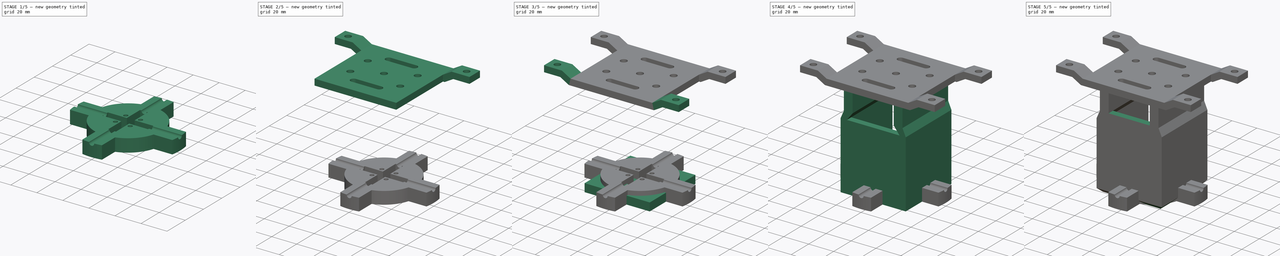
[diagram: build sequence overview — one tinted view per stage of 5, left to right]
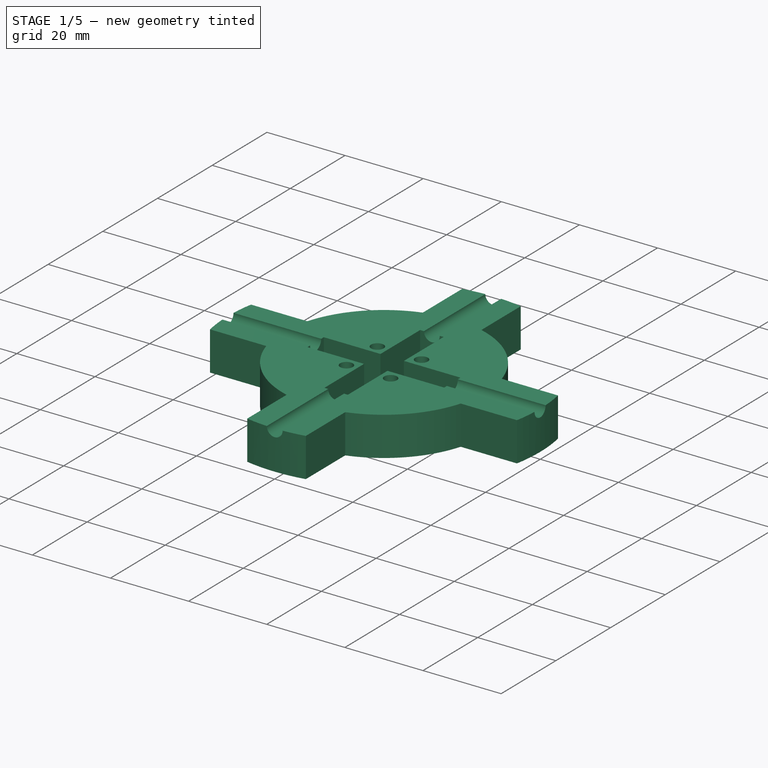
[diagram: stage 1 of 5 — iso view after this stage's code; geometry added in this stage tinted green]
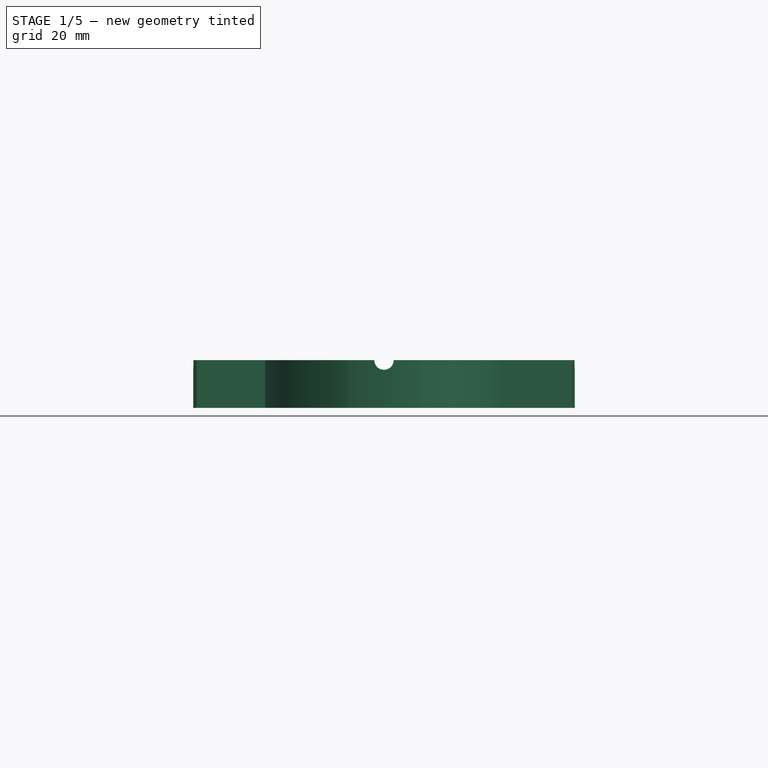
[diagram: stage 1 of 5 — front view after this stage's code; geometry added in this stage tinted green]
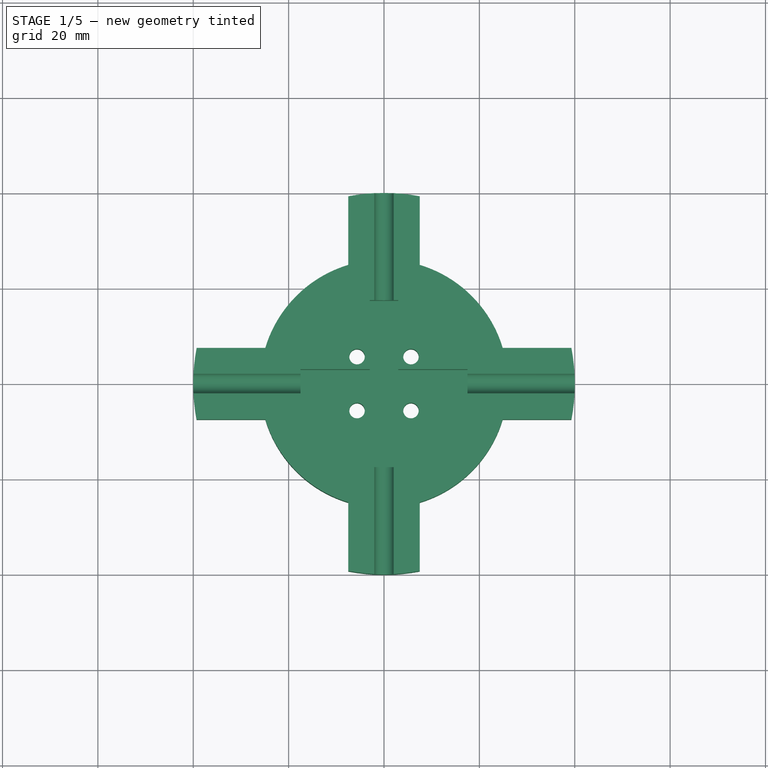
[diagram: stage 1 of 5 — top view after this stage's code; geometry added in this stage tinted green]
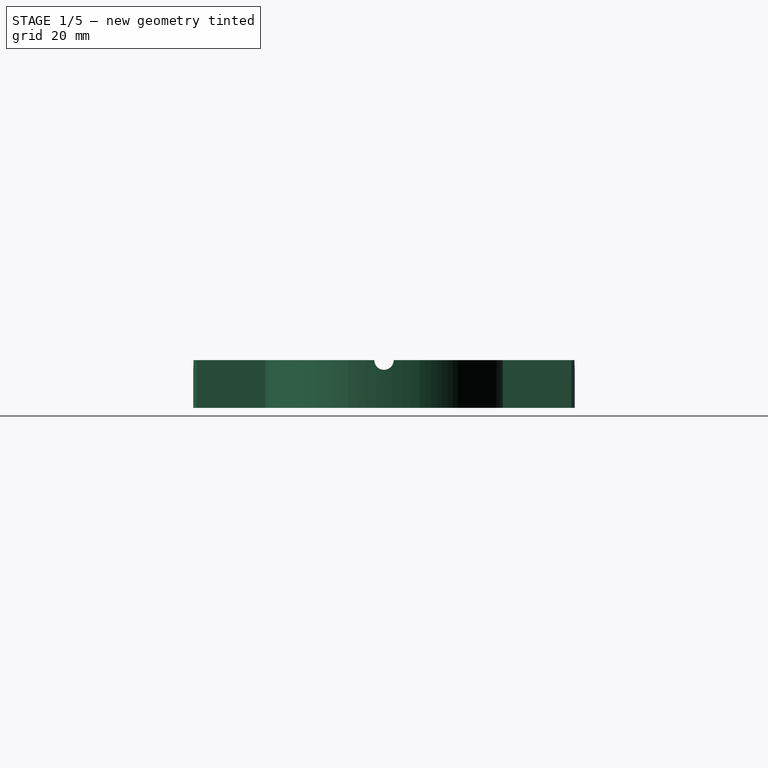
[diagram: stage 1 of 5 — right view after this stage's code; geometry added in this stage tinted green]
FCSTD DOCUMENT  (FreeCAD 1.0R39109 (Git))
Label: MotorMount
License: All rights reserved
LicenseURL: https://en.wikipedia.org/wiki/All_rights_reserved
objects: Sketcher::SketchObject×16, Part::Feature×12, PartDesign::Pad×9, PartDesign::Pocket×5, PartDesign::Body×3, PartDesign::Chamfer×2, PartDesign::Hole×2, PartDesign::Plane×2, App::Part×1, PartDesign::SubShapeBinder×1
note: 104 computed .brp shape members not serialized (recipe doc carries the construction recipe); baked Part::Feature solids carry a one-line shape summary decoded from their .brp

FEATURE [PartDesign::Body] Body001  label="ceilingMount"
  AllowCompound = false
  Group = -> [Binder,Sketch007,Pad005,Sketch008,Pad006,Sketch009,Hole,Sketch010,Pad007,Sketch011,Hole001]
  Origin = -> Origin002
  Tip = -> Hole001
FEATURE [Sketcher::SketchObject] Sketch012
  ArcFitTolerance = 1e-06
  AttachmentSupport = -> [XY_Plane003]
  FullyConstrained = true
  MakeInternals = false
  MapMode = 5
  sketch-geometry (24):
    g0: LineSegment StartX=24.8948 StartY=7.5 StartZ=0 EndX=39.2906 EndY=7.5 EndZ=0
    g1: LineSegment StartX=39.2906 StartY=-7.5 StartZ=0 EndX=24.8948 EndY=-7.5 EndZ=0
    g2: LineSegment StartX=7.5 StartY=24.8948 StartZ=0 EndX=7.5 EndY=39.2906 EndZ=0
    g3: LineSegment StartX=-7.5 StartY=39.2906 StartZ=0 EndX=-7.5 EndY=24.8948 EndZ=0
    g4: LineSegment StartX=-24.8948 StartY=7.5 StartZ=0 EndX=-39.2906 EndY=7.5 EndZ=0
    g5: LineSegment StartX=-39.2906 StartY=-7.5 StartZ=0 EndX=-24.8948 EndY=-7.5 EndZ=0
    g6: LineSegment StartX=-7.5 StartY=-24.8948 StartZ=0 EndX=-7.5 EndY=-39.2906 EndZ=0
    g7: LineSegment StartX=7.5 StartY=-39.2906 StartZ=0 EndX=7.5 EndY=-24.8948 EndZ=0
    g8: ArcOfCircle CenterX=0 CenterY=0 CenterZ=0 NormalX=0 NormalY=0 NormalZ=1 AngleXU=0 Radius=26 StartAngle=5.00501 EndAngle=5.99057
    g9: ArcOfCircle CenterX=0 CenterY=0 CenterZ=0 NormalX=0 NormalY=0 NormalZ=1 AngleXU=0 Radius=26 StartAngle=0.29262 EndAngle=1.27818
    g10: ArcOfCircle CenterX=0 CenterY=0 CenterZ=0 NormalX=0 NormalY=0 NormalZ=1 AngleXU=0 Radius=26 StartAngle=1.86342 EndAngle=2.84897
    g11: ArcOfCircle CenterX=0 CenterY=0 CenterZ=0 NormalX=0 NormalY=0 NormalZ=1 AngleXU=0 Radius=26 StartAngle=3.43421 EndAngle=4.41977
    g12: Circle CenterX=-5.65685 CenterY=5.65685 CenterZ=0 NormalX=0 NormalY=0 NormalZ=1 AngleXU=0 Radius=1.625
    g13: Circle CenterX=5.65685 CenterY=5.65685 CenterZ=0 NormalX=0 NormalY=0 NormalZ=1 AngleXU=0 Radius=1.625
    g14: Circle CenterX=5.65685 CenterY=-5.65685 CenterZ=0 NormalX=0 NormalY=0 NormalZ=1 AngleXU=0 Radius=1.625
    g15: Circle CenterX=-5.65685 CenterY=-5.65685 CenterZ=0 NormalX=0 NormalY=0 NormalZ=1 AngleXU=0 Radius=1.625
    g16: LineSegment [constr] StartX=-5.65685 StartY=-5.65685 StartZ=0 EndX=5.65685 EndY=5.65685 EndZ=0
    g17: LineSegment [constr] StartX=5.65685 StartY=-5.65685 StartZ=0 EndX=-5.65685 EndY=5.65685 EndZ=0
    g18: LineSegment [constr] StartX=-5.65685 StartY=-5.65685 StartZ=0 EndX=5.65685 EndY=-5.65685 EndZ=0
    g19: LineSegment [constr] StartX=-5.65685 StartY=-5.65685 StartZ=0 EndX=-5.65685 EndY=5.65685 EndZ=0
    g20: ArcOfCircle CenterX=0 CenterY=0 CenterZ=0 NormalX=0 NormalY=0 NormalZ=1 AngleXU=0 Radius=40 StartAngle=1.38218 EndAngle=1.75941
    g21: ArcOfCircle CenterX=0 CenterY=0 CenterZ=0 NormalX=0 NormalY=0 NormalZ=1 AngleXU=0 Radius=40 StartAngle=6.09457 EndAngle=6.4718
    g22: ArcOfCircle CenterX=0 CenterY=0 CenterZ=0 NormalX=0 NormalY=0 NormalZ=1 AngleXU=0 Radius=40 StartAngle=4.52377 EndAngle=4.90101
    g23: ArcOfCircle CenterX=0 CenterY=0 CenterZ=0 NormalX=0 NormalY=0 NormalZ=1 AngleXU=0 Radius=40 StartAngle=2.95298 EndAngle=3.33021
  constraints (66):
    c: Horizontal(g0)
    c: Horizontal(g1)
    c: Vertical(g3)
    c: Horizontal(g4)
    c: Horizontal(g5)
    c: Vertical(g6)
    c: Vertical(g7)
    c: Coincident(g8,g-1)
    c: Coincident(g8,g7)
    c: Coincident(g8,g1)
    c: Coincident(g9,g8)
    c: Coincident(g9,g0)
    c: Coincident(g9,g2)
    c: Coincident(g10,g8)
    c: Coincident(g10,g3)
    c: Coincident(g10,g4)
    c: Coincident(g11,g8)
    c: Coincident(g11,g6)
    c: Coincident(g11,g5)
    c: Equal(g8,g11)
    c: Equal(g11,g10)
    c: Equal(g10,g9)
    c: Vertical(g2)
    c: Horizontal(g0,g4)
    c: Horizontal(g3,g2)
    c: Horizontal(g5,g1)
    c: Horizontal(g7,g6)
    c: Vertical(g6,g3)
    c: Vertical(g5,g4)
    c: Equal(g3,g5)
    c: Equal(g5,g6)
    c: Equal(g0,g7)
    c: Radius(g9) = 26
    c: Equal(g15,g12)
    c: Equal(g12,g13)
    c: Equal(g13,g14)
    c: Symmetric(g12,g14,g8)
    c: Symmetric(g13,g15,g8)
    c: Coincident(g16,g15)
    c: Coincident(g16,g13)
    c: Coincident(g17,g14)
    c: Coincident(g17,g12)
    c: Equal(g17,g16)
    c: Horizontal(g14,g15)
    c: Coincident(g18,g15)
    c: Coincident(g18,g14)
    c: Coincident(g19,g15)
    c: Coincident(g19,g12)
    c: Equal(g19,g18)
    c: Distance(g17,g17) = 16
    c: Coincident(g20,g8)
    c: Coincident(g20,g3)
    c: Coincident(g20,g2)
    c: Coincident(g21,g8)
    c: Coincident(g21,g0)
    c: Coincident(g21,g1)
    c: Coincident(g22,g8)
    c: Coincident(g22,g7)
    c: Coincident(g22,g6)
    c: Coincident(g23,g8)
    c: Coincident(g23,g5)
    c: Coincident(g23,g4)
    c: Radius(g23) = 40
    c: Equal(g21,g22)
    c: DistanceY(g1,g0) = 15
    c: Diameter(g15) = 3.25
FEATURE [PartDesign::Pad] Pad008
  Direction = (0,0,1)
  Length = 10
  Length2 = 10
  Profile = -> Sketch012
  ReferenceAxis = -> Sketch012 [N_Axis]
  Refine = true
  Suppressed = false
  Type = 0
FEATURE [PartDesign::Plane] DatumPlane
  AttachmentOffset = pos=(0,0,1) rot=(0,0,1;0rad)
  AttachmentSupport = -> [Pad008]
  Length = 62.6491
  MapMode = 45
  Placement = pos=(2.4e-15,40.7632,5) rot=(0.57735,0.57735,0.57735;4.18879rad)
  ResizeMode = 0
  Width = 92.6491
FEATURE [Sketcher::SketchObject] Sketch013
  ArcFitTolerance = 1e-06
  AttachmentSupport = -> [DatumPlane]
  ExternalGeometry = -> [Pad008]
  FullyConstrained = true
  MakeInternals = false
  MapMode = 5
  Placement = pos=(2.4e-15,40.7632,5) rot=(0.57735,0.57735,0.57735;4.18879rad)
  sketch-geometry (2):
    g0: LineSegment StartX=5 StartY=-2.025 StartZ=0 EndX=5 EndY=2.025 EndZ=0
    g1: ArcOfCircle CenterX=5 CenterY=3.0191e-12 CenterZ=0 NormalX=0 NormalY=0 NormalZ=1 AngleXU=0 Radius=2.025 StartAngle=1.5708 EndAngle=4.71239
  constraints (6):
    c: Symmetric(g0,g0,g-1)
    c: Vertical(g0,g-3)
    c: DistanceY(g0,g0) = 4.05
    c: Coincident(g1,g0)
    c: Coincident(g1,g0)
    c: Vertical(g1,g0)
FEATURE [PartDesign::Pocket] Pocket002
  BaseFeature = -> Pad008
  Direction = (0,-1,0)
  Length = 0
  Length2 = 5
  Profile = -> Sketch013
  ReferenceAxis = -> Sketch013 [N_Axis]
  Refine = true
  Suppressed = false
  Type = 3
  UpToFace = -> Pad008 [Face7]
FEATURE [PartDesign::Plane] DatumPlane001
  AttachmentOffset = pos=(0,0,-1) rot=(0,0,1;0rad)
  AttachmentSupport = -> [Pocket002]
  Length = 62.6491
  MapMode = 45
  Placement = pos=(-40.7632,4.8e-15,5) rot=(0.707107,0,0.707107;3.14159rad)
  ResizeMode = 0
  Width = 92.6491
FEATURE [Sketcher::SketchObject] Sketch014
  ArcFitTolerance = 1e-06
  AttachmentSupport = -> [DatumPlane001]
  ExternalGeometry = -> [Pocket002]
  FullyConstrained = true
  MakeInternals = false
  MapMode = 5
  Placement = pos=(-40.7632,4.8e-15,5) rot=(0.707107,0,0.707107;3.14159rad)
  sketch-geometry (2):
    g0: ArcOfCircle CenterX=5 CenterY=0 CenterZ=0 NormalX=0 NormalY=0 NormalZ=1 AngleXU=0 Radius=2.025 StartAngle=1.5708 EndAngle=4.71239
    g1: LineSegment StartX=5 StartY=-2.025 StartZ=0 EndX=5 EndY=2.025 EndZ=0
  constraints (7):
    c: PointOnObject(g0,g-1)
    c: Coincident(g1,g0)
    c: Coincident(g1,g0)
    c: Vertical(g1)
    c: Vertical(g0,g0)
    c: Vertical(g0,g-3)
    c: DistanceY(g1,g1) = 4.05
FEATURE [PartDesign::Pocket] Pocket003
  BaseFeature = -> Pocket002
  Direction = (-1,0,2e-16)
  Length = 0
  Length2 = 5
  Profile = -> Sketch014
  ReferenceAxis = -> Sketch014 [N_Axis]
  Refine = true
  Suppressed = false
  Type = 3
  UpToFace = -> Pocket002 [Face6]
FEATURE [Sketcher::SketchObject] Sketch015
  ArcFitTolerance = 1e-06
  AttachmentSupport = -> [Pocket003]
  FullyConstrained = true
  MakeInternals = false
  MapMode = 5
  Placement = pos=(0,0,10) rot=(0,0,1;0rad)
  sketch-geometry (12):
    g0: LineSegment StartX=-3 StartY=17.5 StartZ=0 EndX=-3 EndY=3 EndZ=0
    g1: LineSegment StartX=-3 StartY=3 StartZ=0 EndX=-17.5 EndY=3 EndZ=0
    g2: LineSegment StartX=-17.5 StartY=3 StartZ=0 EndX=-17.5 EndY=-3 EndZ=0
    g3: LineSegment StartX=-17.5 StartY=-3 StartZ=0 EndX=-3 EndY=-3 EndZ=0
    g4: LineSegment StartX=-3 StartY=-3 StartZ=0 EndX=-3 EndY=-17.5 EndZ=0
    g5: LineSegment StartX=-3 StartY=-17.5 StartZ=0 EndX=3 EndY=-17.5 EndZ=0
    g6: LineSegment StartX=3 StartY=-17.5 StartZ=0 EndX=3 EndY=-3 EndZ=0
    g7: LineSegment StartX=3 StartY=-3 StartZ=0 EndX=17.5 EndY=-3 EndZ=0
    g8: LineSegment StartX=17.5 StartY=-3 StartZ=0 EndX=17.5 EndY=3 EndZ=0
    g9: LineSegment StartX=17.5 StartY=3 StartZ=0 EndX=3 EndY=3 EndZ=0
    g10: LineSegment StartX=3 StartY=3 StartZ=0 EndX=3 EndY=17.5 EndZ=0
    g11: LineSegment StartX=3 StartY=17.5 StartZ=0 EndX=-3 EndY=17.5 EndZ=0
  constraints (34):
    c: Vertical(g0)
    c: Coincident(g0,g1)
    c: Horizontal(g1)
    c: Coincident(g1,g2)
    c: Coincident(g2,g3)
    c: Horizontal(g3)
    c: Coincident(g3,g4)
    c: Vertical(g4)
    c: Coincident(g4,g5)
    c: Coincident(g5,g6)
    c: Vertical(g6)
    c: Coincident(g6,g7)
    c: Horizontal(g7)
    c: Coincident(g7,g8)
    c: Coincident(g8,g9)
    c: Horizontal(g9)
    c: Coincident(g9,g10)
    c: Vertical(g10)
    c: Coincident(g10,g11)
    c: Coincident(g11,g0)
    c: Horizontal(g11)
    c: Vertical(g2)
    c: Equal(g3,g1)
    c: Equal(g1,g0)
    c: Equal(g0,g10)
    c: Equal(g10,g9)
    c: Equal(g9,g7)
    c: Equal(g7,g6)
    c: Equal(g6,g4)
    c: Symmetric(g5,g4,g-2)
    c: Symmetric(g7,g8,g-1)
    c: Equal(g11,g8)
    c: DistanceY(g5,g10) = 35
    c: DistanceY(g2,g2) = 6
FEATURE [PartDesign::Pocket] Pocket004
  BaseFeature = -> Pocket003
  Direction = (0,0,-1)
  Length = 9
  Length2 = 5
  Profile = -> Sketch015
  ReferenceAxis = -> Sketch015 [N_Axis]
  Refine = true
  Suppressed = false
  Type = 0
FEATURE [PartDesign::Body] Body002  label="hangerHolder"
  AllowCompound = false
  Group = -> [Sketch012,Pad008,DatumPlane,Sketch013,Pocket002,DatumPlane001,Sketch014,Pocket003,Sketch015,Pocket004]
  Origin = -> Origin003
  Placement = pos=(0,0,-43) rot=(0,0,1;0rad)
  Tip = -> Pocket004
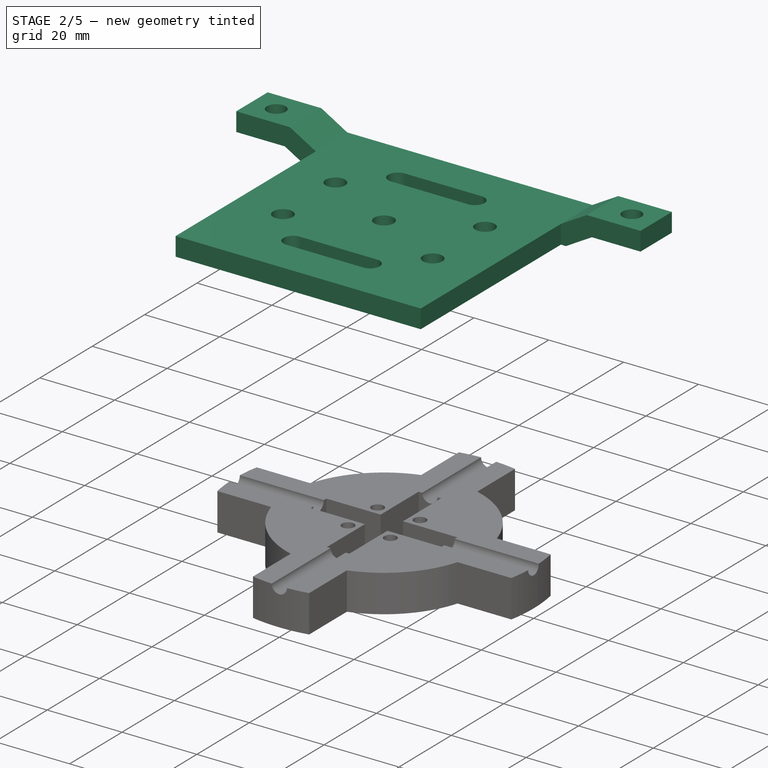
[diagram: stage 2 of 5 — iso view after this stage's code; geometry added in this stage tinted green]
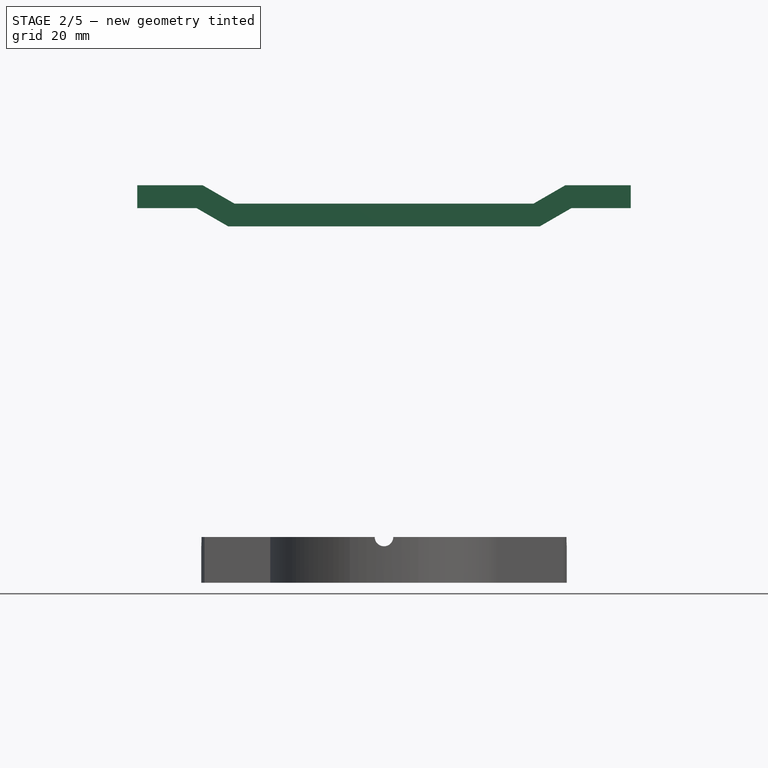
[diagram: stage 2 of 5 — front view after this stage's code; geometry added in this stage tinted green]
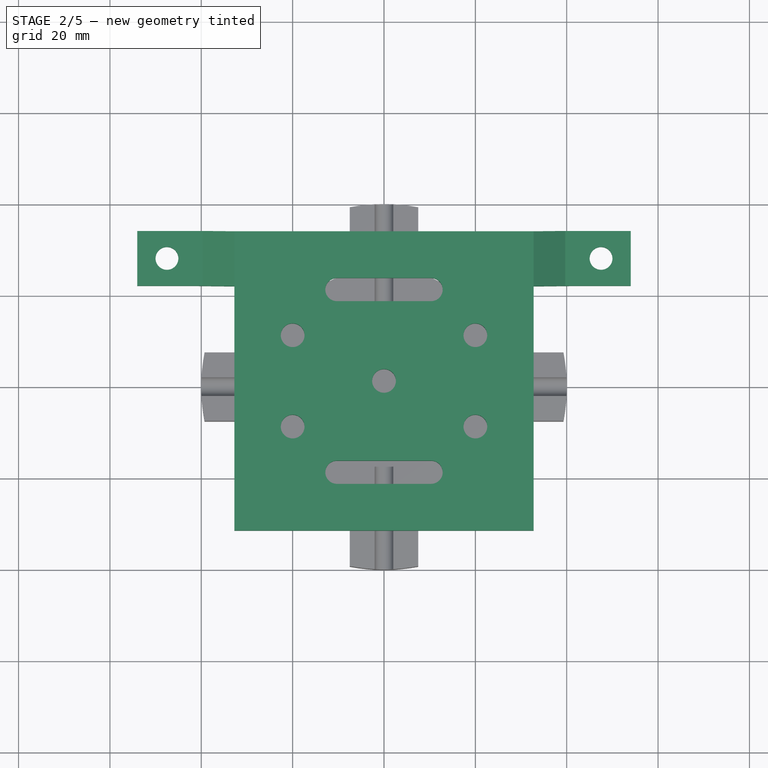
[diagram: stage 2 of 5 — top view after this stage's code; geometry added in this stage tinted green]
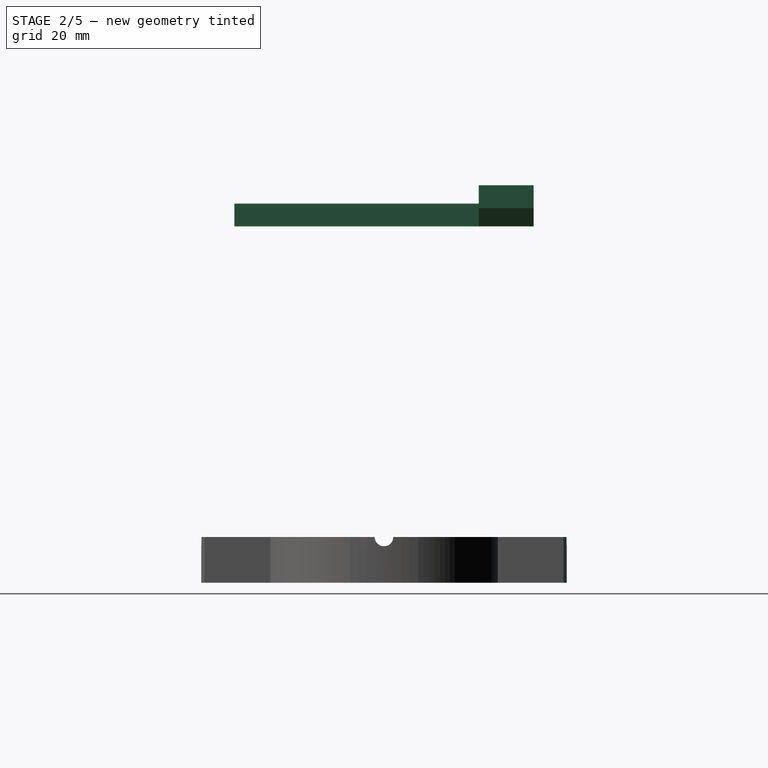
[diagram: stage 2 of 5 — right view after this stage's code; geometry added in this stage tinted green]
FEATURE [PartDesign::Body] Body  label="stepperMount"
  AllowCompound = false
  Group = -> [Sketch,Pad,Sketch001,Pocket,Sketch002,Pad001,Chamfer,Sketch003,Pad002,Sketch004,Pocket001,Sketch005,Pad003,Sketch006,Pad004,Chamfer001]
  Origin = -> Origin
  Tip = -> Chamfer001
FEATURE [PartDesign::SubShapeBinder] Binder
  BindCopyOnChange = 0
  BindMode = 0
  ClaimChildren = false
  Context = -> Body001 [Binder.]
  Fuse = false
  MakeFace = true
  OffsetFill = false
  OffsetIntersection = false
  OffsetJoinType = 0
  OffsetOpenResult = false
  PartialLoad = false
  Refine = true
  Relative = true
  Support = -> [Part__Feature011]
  _Version = 2
FEATURE [Sketcher::SketchObject] Sketch007
  ArcFitTolerance = 1e-06
  AttachmentSupport = -> [Binder]
  ExternalGeometry = -> [Binder]
  FullyConstrained = true
  MakeInternals = false
  MapMode = 5
  Placement = pos=(0,0,78) rot=(0,0,1;0rad)
  sketch-geometry (17):
    g0: LineSegment StartX=-32.75 StartY=32.75 StartZ=0 EndX=-32.75 EndY=-32.75 EndZ=0
    g1: LineSegment StartX=-32.75 StartY=-32.75 StartZ=0 EndX=32.75 EndY=-32.75 EndZ=0
    g2: LineSegment StartX=32.75 StartY=-32.75 StartZ=0 EndX=32.75 EndY=32.75 EndZ=0
    g3: LineSegment StartX=32.75 StartY=32.75 StartZ=0 EndX=-32.75 EndY=32.75 EndZ=0
    g4: Circle CenterX=-20 CenterY=-10 CenterZ=0 NormalX=0 NormalY=0 NormalZ=1 AngleXU=0 Radius=2.6
    g5: Circle CenterX=20 CenterY=-10 CenterZ=0 NormalX=0 NormalY=0 NormalZ=1 AngleXU=0 Radius=2.6
    g6: Circle CenterX=-20 CenterY=10 CenterZ=0 NormalX=0 NormalY=0 NormalZ=1 AngleXU=0 Radius=2.6
    g7: Circle CenterX=20 CenterY=10 CenterZ=0 NormalX=0 NormalY=0 NormalZ=1 AngleXU=0 Radius=2.6
    g8: Circle CenterX=0 CenterY=0 CenterZ=0 NormalX=0 NormalY=0 NormalZ=1 AngleXU=0 Radius=2.6
    g9: ArcOfCircle CenterX=-10.3 CenterY=-20 CenterZ=0 NormalX=0 NormalY=0 NormalZ=1 AngleXU=0 Radius=2.55 StartAngle=1.5708 EndAngle=4.71239
    g10: ArcOfCircle CenterX=10.3 CenterY=-20 CenterZ=0 NormalX=0 NormalY=0 NormalZ=1 AngleXU=0 Radius=2.55 StartAngle=4.71239 EndAngle=7.85398
    g11: LineSegment StartX=-10.3 StartY=-17.45 StartZ=0 EndX=10.3 EndY=-17.45 EndZ=0
    g12: LineSegment StartX=-10.3 StartY=-22.55 StartZ=0 EndX=10.3 EndY=-22.55 EndZ=0
    g13: ArcOfCircle CenterX=10.3 CenterY=20 CenterZ=0 NormalX=0 NormalY=0 NormalZ=1 AngleXU=0 Radius=2.55 StartAngle=4.71239 EndAngle=7.85398
    g14: ArcOfCircle CenterX=-10.3 CenterY=20 CenterZ=0 NormalX=0 NormalY=0 NormalZ=1 AngleXU=0 Radius=2.55 StartAngle=1.5708 EndAngle=4.71239
    g15: LineSegment StartX=10.3 StartY=17.45 StartZ=0 EndX=-10.3 EndY=17.45 EndZ=0
    g16: LineSegment StartX=10.3 StartY=22.55 StartZ=0 EndX=-10.3 EndY=22.55 EndZ=0
  constraints (40):
    c: Coincident(g0,g1)
    c: Coincident(g1,g2)
    c: Coincident(g2,g3)
    c: Coincident(g3,g0)
    c: Vertical(g0)
    c: Vertical(g2)
    c: Horizontal(g1)
    c: Horizontal(g3)
    c: PointOnObject(g-5,g1)
    c: PointOnObject(g-3,g2)
    c: PointOnObject(g-6,g3)
    c: PointOnObject(g-4,g0)
    c: Symmetric(g4,g5,g-2)
    c: Symmetric(g6,g7,g-2)
    c: Equal(g7,g6)
    c: Equal(g6,g4)
    c: Equal(g4,g5)
    c: Diameter(g6) = 5.2
    c: DistanceX(g6,g7) = 40
    c: Symmetric(g7,g5,g-1)
    c: DistanceY(g5,g7) = 20
    c: Coincident(g8,g-1)
    c: Equal(g8,g6)
    c: Tangent(g9,g11) = 1.5708
    c: Tangent(g9,g12) = -1.5708
    c: Tangent(g10,g11) = 1.5708
    c: Tangent(g10,g12) = -1.5708
    c: Equal(g9,g10)
    c: Symmetric(g9,g10,g-2)
    c: Tangent(g13,g15) = 1.5708
    c: Tangent(g13,g16) = -1.5708
    c: Tangent(g14,g15) = 1.5708
    c: Tangent(g14,g16) = -1.5708
    c: Equal(g13,g14)
    c: Symmetric(g14,g13,g-2)
    c: Symmetric(g9,g14,g-1)
    c: DistanceY(g9,g14) = 40
    c: Radius(g13) = 2.55
    c: Equal(g13,g10)
    c: Distance(g14,g13) = 15.5
FEATURE [PartDesign::Pad] Pad005
  Direction = (0,0,1)
  Length = 5
  Length2 = 10
  Profile = -> Sketch007
  ReferenceAxis = -> Sketch007 [N_Axis]
  Refine = true
  Suppressed = false
  Type = 0
FEATURE [Sketcher::SketchObject] Sketch008
  ArcFitTolerance = 1e-06
  AttachmentSupport = -> [Pad005]
  ExternalGeometry = -> [Pad005]
  FullyConstrained = true
  MakeInternals = false
  MapMode = 5
  Placement = pos=(0,32.75,0) rot=(0,0.707107,0.707107;3.14159rad)
  sketch-geometry (14):
    g0: LineSegment StartX=-39.6782 StartY=87 StartZ=0 EndX=-54.0179 EndY=87 EndZ=0
    g1: LineSegment StartX=-54.0179 StartY=87 StartZ=0 EndX=-54.0179 EndY=82 EndZ=0
    g2: LineSegment StartX=-54.0179 StartY=82 StartZ=0 EndX=-41.0179 EndY=82 EndZ=0
    g3: LineSegment StartX=-39.6782 StartY=87 StartZ=0 EndX=-32.75 EndY=83 EndZ=0
    g4: LineSegment StartX=-41.0179 StartY=82 StartZ=0 EndX=-34.0897 EndY=78 EndZ=0
    g5: LineSegment StartX=-34.0897 StartY=78 StartZ=0 EndX=-32.75 EndY=78 EndZ=0
    g6: LineSegment StartX=39.6782 StartY=87 StartZ=0 EndX=54.0179 EndY=87 EndZ=0
    g7: LineSegment StartX=54.0179 StartY=87 StartZ=0 EndX=54.0179 EndY=82 EndZ=0
    g8: LineSegment StartX=54.0179 StartY=82 StartZ=0 EndX=41.0179 EndY=82 EndZ=0
    g9: LineSegment StartX=39.6782 StartY=87 StartZ=0 EndX=32.75 EndY=83 EndZ=0
    g10: LineSegment StartX=41.0179 StartY=82 StartZ=0 EndX=34.0897 EndY=78 EndZ=0
    g11: LineSegment StartX=34.0897 StartY=78 StartZ=0 EndX=32.75 EndY=78 EndZ=0
    g12: LineSegment StartX=-32.75 StartY=83 StartZ=0 EndX=-32.75 EndY=78 EndZ=0
    g13: LineSegment StartX=32.75 StartY=78 StartZ=0 EndX=32.75 EndY=83 EndZ=0
  constraints (37):
    c: Coincident(g0,g1)
    c: Coincident(g1,g2)
    c: Horizontal(g2)
    c: Coincident(g0,g3)
    c: Horizontal(g0)
    c: Vertical(g1)
    c: Coincident(g2,g4)
    c: Coincident(g4,g5)
    c: Coincident(g5,g-4)
    c: Horizontal(g5)
    c: Parallel(g3,g4)
    c: Distance(g3,g4) = 5
    c: Coincident(g3,g-3)
    c: Distance(g2,g0) = 5
    c: DistanceX(g2,g2) = 13
    c: DistanceY(g3,g0) = 4
    c: Angle(g5,g4) = 2.61799
    c: Coincident(g6,g7)
    c: Coincident(g7,g8)
    c: Horizontal(g8)
    c: Coincident(g6,g9)
    c: Horizontal(g6)
    c: Vertical(g7)
    c: Coincident(g8,g10)
    c: Coincident(g10,g11)
    c: Horizontal(g11)
    c: Parallel(g9,g10)
    c: Distance(g9,g10) = 5
    c: Distance(g8,g6) = 5
    c: Angle(g11,g10) = -2.61799
    c: Symmetric(g3,g9,g-2)
    c: Symmetric(g11,g5,g-2)
    c: Symmetric(g0,g6,g-2)
    c: Coincident(g12,g3)
    c: Coincident(g12,g5)
    c: Coincident(g13,g11)
    c: Coincident(g13,g9)
FEATURE [PartDesign::Pad] Pad006
  BaseFeature = -> Pad005
  Direction = (0,1,-2e-16)
  Length = 12
  Length2 = 10
  Profile = -> Sketch008
  ReferenceAxis = -> Sketch008 [N_Axis]
  Refine = true
  Reversed = true
  Suppressed = false
  Type = 0
FEATURE [Sketcher::SketchObject] Sketch009
  ArcFitTolerance = 1e-06
  AttachmentSupport = -> [Pad006]
  ExternalGeometry = -> [Pad006]
  FullyConstrained = true
  MakeInternals = false
  MapMode = 5
  Placement = pos=(0,1.8e-14,82) rot=(1,0,0;3.14159rad)
  sketch-geometry (2):
    g0: Circle CenterX=-47.5179 CenterY=-26.75 CenterZ=0 NormalX=0 NormalY=0 NormalZ=1 AngleXU=0 Radius=2.25
    g1: Circle CenterX=47.5179 CenterY=-26.75 CenterZ=0 NormalX=0 NormalY=0 NormalZ=1 AngleXU=0 Radius=2.25
  constraints (4):
    c: Symmetric(g-3,g-4,g0)
    c: Symmetric(g-5,g-6,g1)
    c: Equal(g1,g0)
    c: Diameter(g0) = 4.5
FEATURE [PartDesign::Hole] Hole
  BaseFeature = -> Pad006
  CustomThreadClearance = 0
  Depth = 25
  DepthType = 0
  Diameter = 5
  DrillForDepth = false
  DrillPoint = 1
  DrillPointAngle = 118
  HoleCutCountersinkAngle = 80
  HoleCutCustomValues = false
  HoleCutDepth = 0
  HoleCutDiameter = 7
  HoleCutType = 2
  ModelThread = false
  Profile = -> Sketch009
  Refine = true
  Suppressed = false
  Tapered = false
  TaperedAngle = 90
  ThreadClass = 0
  ThreadDepth = 25
  ThreadDepthType = 0
  ThreadDirection = 0
  ThreadFit = 0
  ThreadSize = 12
  ThreadType = 1
  Threaded = false
  UseCustomThreadClearance = false
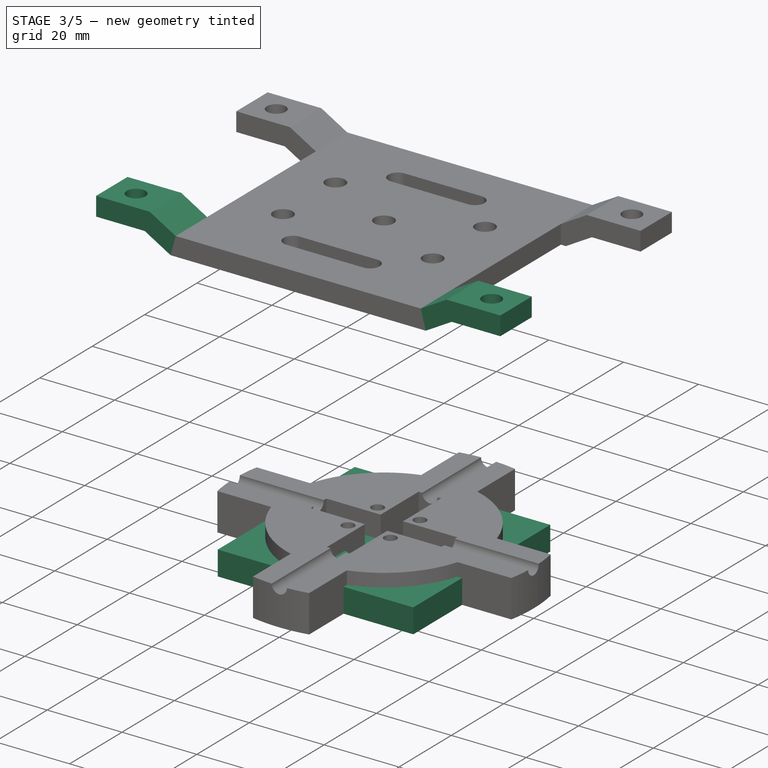
[diagram: stage 3 of 5 — iso view after this stage's code; geometry added in this stage tinted green]
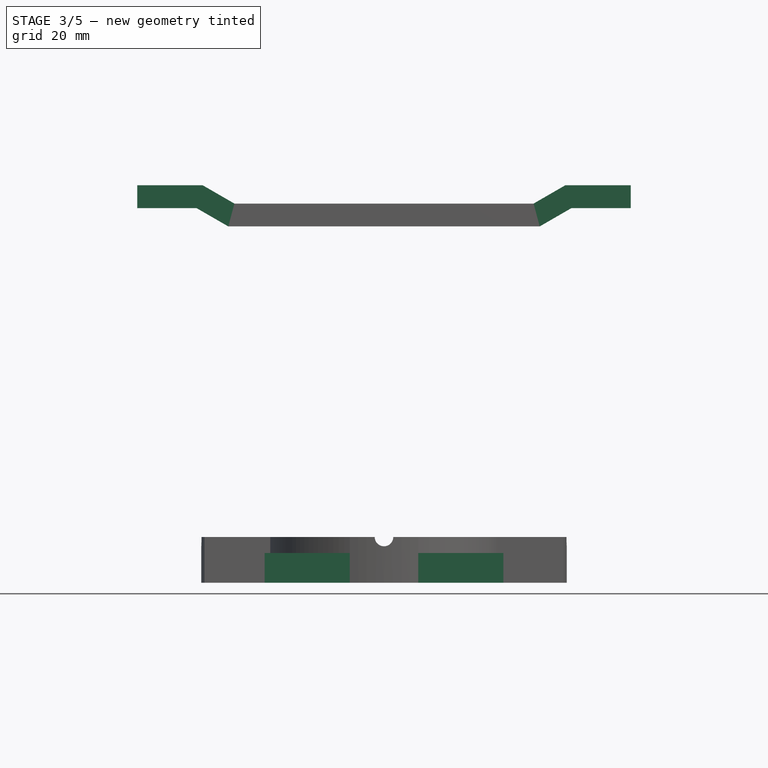
[diagram: stage 3 of 5 — front view after this stage's code; geometry added in this stage tinted green]
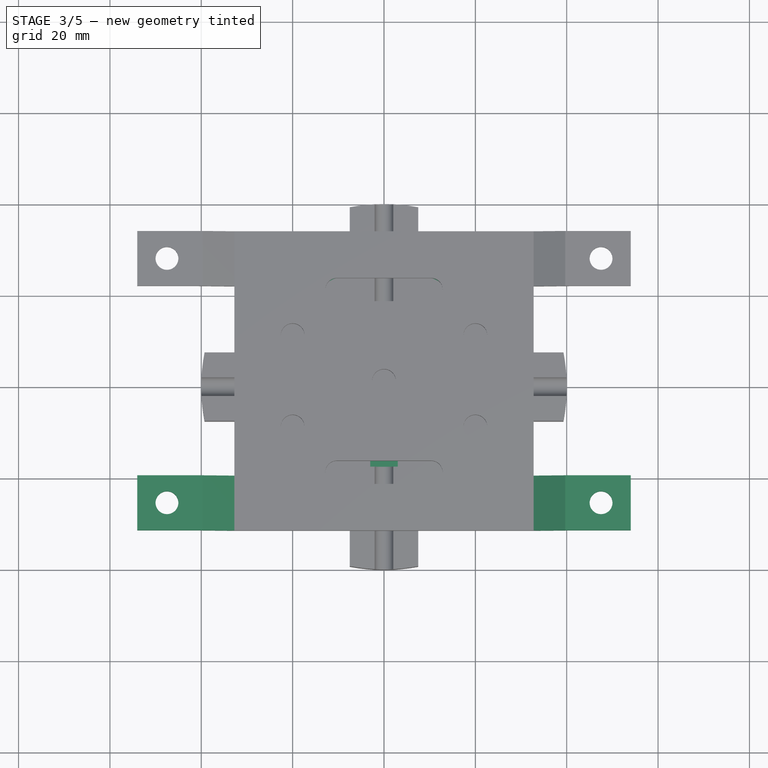
[diagram: stage 3 of 5 — top view after this stage's code; geometry added in this stage tinted green]
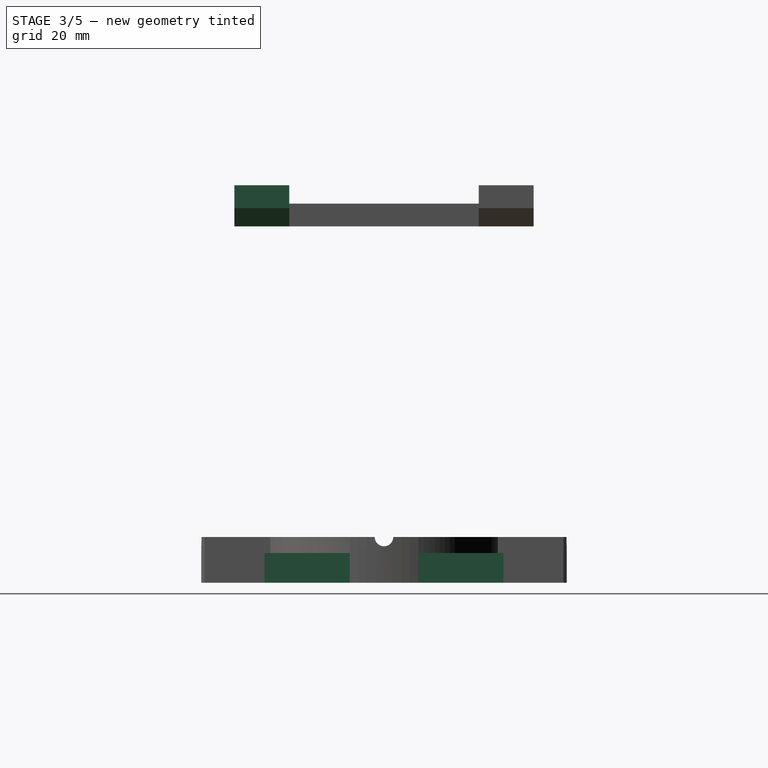
[diagram: stage 3 of 5 — right view after this stage's code; geometry added in this stage tinted green]
FEATURE [Sketcher::SketchObject] Sketch
  ArcFitTolerance = 1e-06
  AttachmentSupport = -> [XY_Plane]
  FullyConstrained = true
  MakeInternals = false
  MapMode = 5
  sketch-geometry (15):
    g0: ArcOfCircle CenterX=0 CenterY=0 CenterZ=0 NormalX=0 NormalY=0 NormalZ=1 AngleXU=0 Radius=3 StartAngle=3.14159 EndAngle=6.28319
    g1: GeomPoint [constr] X=0 Y=0 Z=0
    g2: Circle CenterX=-15.5 CenterY=-15.5 CenterZ=0 NormalX=0 NormalY=0 NormalZ=1 AngleXU=0 Radius=1.65
    g3: Circle CenterX=15.5 CenterY=-15.5 CenterZ=0 NormalX=0 NormalY=0 NormalZ=1 AngleXU=0 Radius=1.65
    g4: Circle CenterX=15.5 CenterY=15.5 CenterZ=0 NormalX=0 NormalY=0 NormalZ=1 AngleXU=0 Radius=1.65
    g5: Circle CenterX=-15.5 CenterY=15.5 CenterZ=0 NormalX=0 NormalY=0 NormalZ=1 AngleXU=0 Radius=1.65
    g6: LineSegment [constr] StartX=-15.5 StartY=-15.5 StartZ=0 EndX=15.5 EndY=-15.5 EndZ=0
    g7: LineSegment [constr] StartX=15.5 StartY=-15.5 StartZ=0 EndX=15.5 EndY=15.5 EndZ=0
    g8: LineSegment StartX=-26.125 StartY=26.125 StartZ=0 EndX=-26.125 EndY=-26.125 EndZ=0
    g9: LineSegment StartX=-26.125 StartY=-26.125 StartZ=0 EndX=26.125 EndY=-26.125 EndZ=0
    g10: LineSegment StartX=26.125 StartY=-26.125 StartZ=0 EndX=26.125 EndY=26.125 EndZ=0
    g11: LineSegment StartX=-26.125 StartY=26.125 StartZ=0 EndX=-3 EndY=26.125 EndZ=0
    g12: LineSegment StartX=-3 StartY=0 StartZ=0 EndX=-3 EndY=26.125 EndZ=0
    g13: LineSegment StartX=3 StartY=0 StartZ=0 EndX=3 EndY=26.125 EndZ=0
    g14: LineSegment StartX=3 StartY=26.125 StartZ=0 EndX=26.125 EndY=26.125 EndZ=0
  constraints (39):
    c: Coincident(g0,g-1)
    c: Coincident(g1,g0)
    c: Diameter(g0) = 6
    c: Equal(g3,g4)
    c: Equal(g4,g5)
    c: Equal(g5,g2)
    c: Horizontal(g3,g2)
    c: Horizontal(g4,g5)
    c: Vertical(g5,g2)
    c: Vertical(g4,g3)
    c: Symmetric(g5,g3,g0)
    c: Coincident(g6,g2)
    c: Coincident(g6,g3)
    c: Coincident(g7,g3)
    c: Coincident(g7,g4)
    c: Equal(g7,g6)
    c: DistanceY(g7,g7) = 31
    c: Diameter(g5) = 3.3
    c: Vertical(g10)
    c: Horizontal(g11)
    c: Symmetric(g9,g9,g-2)
    c: Symmetric(g8,g8,g-1)
    c: DistanceY(g9,g11) = 52.25
    c: Vertical(g12)
    c: PointOnObject(g13,g14)
    c: Vertical(g13)
    c: Coincident(g11,g12)
    c: PointOnObject(g14,g13)
    c: Coincident(g0,g13)
    c: Coincident(g0,g12)
    c: Horizontal(g0,g0)
    c: Horizontal(g0,g0)
    c: Horizontal(g14)
    c: Horizontal(g13,g11)
    c: Coincident(g8,g11)
    c: Coincident(g8,g9)
    c: Coincident(g9,g10)
    c: Coincident(g10,g14)
    c: Equal(g9,g8)
FEATURE [PartDesign::Pad] Pad
  Direction = (0,0,1)
  Length = 6.5
  Length2 = 10
  Profile = -> Sketch
  ReferenceAxis = -> Sketch [N_Axis]
  Refine = true
  Suppressed = false
  Type = 0
FEATURE [Sketcher::SketchObject] Sketch001
  ArcFitTolerance = 1e-06
  AttachmentSupport = -> [Pad]
  ExternalGeometry = -> [Pad]
  FullyConstrained = true
  MakeInternals = false
  MapMode = 5
  Placement = pos=(0,0,6.5) rot=(0,0,1;0rad)
  sketch-geometry (4):
    g0: ArcOfCircle CenterX=0 CenterY=-1.4e-15 CenterZ=0 NormalX=0 NormalY=0 NormalZ=1 AngleXU=0 Radius=11.1 StartAngle=3.14159 EndAngle=6.28319
    g1: LineSegment StartX=-11.1 StartY=-1.4e-15 StartZ=0 EndX=-11.1 EndY=26.125 EndZ=0
    g2: LineSegment StartX=11.1 StartY=-1.4e-15 StartZ=0 EndX=11.1 EndY=26.125 EndZ=0
    g3: LineSegment StartX=-11.1 StartY=26.125 StartZ=0 EndX=11.1 EndY=26.125 EndZ=0
  constraints (12):
    c: Coincident(g0,g-1)
    c: Diameter(g0) = 22.2
    c: Vertical(g1)
    c: PointOnObject(g2,g-3)
    c: Vertical(g2)
    c: Coincident(g0,g2)
    c: Coincident(g0,g1)
    c: Horizontal(g0,g0)
    c: Horizontal(g0,g0)
    c: Horizontal(g1,g2)
    c: Coincident(g3,g1)
    c: Coincident(g3,g2)
FEATURE [PartDesign::Pocket] Pocket
  BaseFeature = -> Pad
  Direction = (0,0,-1)
  Length = 2.5
  Length2 = 5
  Profile = -> Sketch001
  ReferenceAxis = -> Sketch001 [N_Axis]
  Refine = true
  Suppressed = false
  Type = 0
FEATURE [Sketcher::SketchObject] Sketch010
  ArcFitTolerance = 1e-06
  AttachmentSupport = -> [Hole]
  ExternalGeometry = -> [Hole]
  FullyConstrained = true
  MakeInternals = false
  MapMode = 5
  Placement = pos=(0,-32.75,0) rot=(1,0,0;1.5708rad)
  sketch-geometry (14):
    g0: LineSegment StartX=-32.75 StartY=83 StartZ=0 EndX=-39.6782 EndY=87 EndZ=0
    g1: LineSegment StartX=-39.6782 StartY=87 StartZ=0 EndX=-54.0179 EndY=87 EndZ=0
    g2: LineSegment StartX=-54.0179 StartY=87 StartZ=0 EndX=-54.0179 EndY=82 EndZ=0
    g3: LineSegment StartX=-54.0179 StartY=82 StartZ=0 EndX=-41.0179 EndY=82 EndZ=0
    g4: LineSegment StartX=-41.0179 StartY=82 StartZ=0 EndX=-34.0897 EndY=78 EndZ=0
    g5: LineSegment StartX=-34.0897 StartY=78 StartZ=0 EndX=-32.75 EndY=78 EndZ=0
    g6: LineSegment StartX=-32.75 StartY=78 StartZ=0 EndX=-32.75 EndY=83 EndZ=0
    g7: LineSegment StartX=32.75 StartY=78 StartZ=0 EndX=32.75 EndY=83 EndZ=0
    g8: LineSegment StartX=32.75 StartY=83 StartZ=0 EndX=39.6782 EndY=87 EndZ=0
    g9: LineSegment StartX=39.6782 StartY=87 StartZ=0 EndX=54.0179 EndY=87 EndZ=0
    g10: LineSegment StartX=54.0179 StartY=87 StartZ=0 EndX=54.0179 EndY=82 EndZ=0
    g11: LineSegment StartX=54.0179 StartY=82 StartZ=0 EndX=41.0179 EndY=82 EndZ=0
    g12: LineSegment StartX=41.0179 StartY=82 StartZ=0 EndX=34.0897 EndY=78 EndZ=0
    g13: LineSegment StartX=34.0897 StartY=78 StartZ=0 EndX=32.75 EndY=78 EndZ=0
  constraints (28):
    c: Coincident(g0,g-7)
    c: Coincident(g0,g-3)
    c: Coincident(g0,g1)
    c: Coincident(g1,g-4)
    c: Coincident(g1,g2)
    c: Coincident(g2,g-5)
    c: Coincident(g2,g3)
    c: Coincident(g3,g-6)
    c: Coincident(g3,g4)
    c: Coincident(g4,g-9)
    c: Coincident(g4,g5)
    c: Coincident(g5,g-8)
    c: Coincident(g5,g6)
    c: Coincident(g6,g0)
    c: Coincident(g7,g-11)
    c: Coincident(g7,g-10)
    c: Coincident(g7,g8)
    c: Coincident(g8,g-14)
    c: Coincident(g8,g9)
    c: Coincident(g9,g-15)
    c: Coincident(g9,g10)
    c: Coincident(g10,g-16)
    c: Coincident(g10,g11)
    c: Coincident(g11,g-13)
    c: Coincident(g11,g12)
    c: Coincident(g12,g-12)
    c: Coincident(g12,g13)
    c: Coincident(g13,g7)
FEATURE [PartDesign::Pad] Pad007
  BaseFeature = -> Hole
  Direction = (0,-1,2e-16)
  Length = 12
  Length2 = 10
  Profile = -> Sketch010
  ReferenceAxis = -> Sketch010 [N_Axis]
  Refine = true
  Reversed = true
  Suppressed = false
  Type = 0
FEATURE [Sketcher::SketchObject] Sketch011
  ArcFitTolerance = 1e-06
  AttachmentSupport = -> [Pad007]
  ExternalGeometry = -> [Pad007]
  FullyConstrained = true
  MakeInternals = false
  MapMode = 5
  Placement = pos=(-2.69e-13,1.8e-14,82) rot=(1,0,0;3.14159rad)
  sketch-geometry (2):
    g0: Circle CenterX=-47.5179 CenterY=26.75 CenterZ=0 NormalX=0 NormalY=0 NormalZ=1 AngleXU=0 Radius=2.25
    g1: Circle CenterX=47.5179 CenterY=26.75 CenterZ=0 NormalX=0 NormalY=0 NormalZ=1 AngleXU=0 Radius=2.25
  constraints (4):
    c: Symmetric(g-4,g-3,g0)
    c: Symmetric(g-5,g-6,g1)
    c: Equal(g1,g0)
    c: Diameter(g0) = 4.5
FEATURE [PartDesign::Hole] Hole001
  BaseFeature = -> Pad007
  CustomThreadClearance = 0
  Depth = 25
  DepthType = 0
  Diameter = 5
  DrillForDepth = false
  DrillPoint = 1
  DrillPointAngle = 118
  HoleCutCountersinkAngle = 80
  HoleCutCustomValues = false
  HoleCutDepth = 0
  HoleCutDiameter = 7
  HoleCutType = 2
  ModelThread = false
  Profile = -> Sketch011
  Refine = true
  Suppressed = false
  Tapered = false
  TaperedAngle = 90
  ThreadClass = 0
  ThreadDepth = 25
  ThreadDepthType = 0
  ThreadDirection = 0
  ThreadFit = 0
  ThreadSize = 12
  ThreadType = 1
  Threaded = false
  UseCustomThreadClearance = false
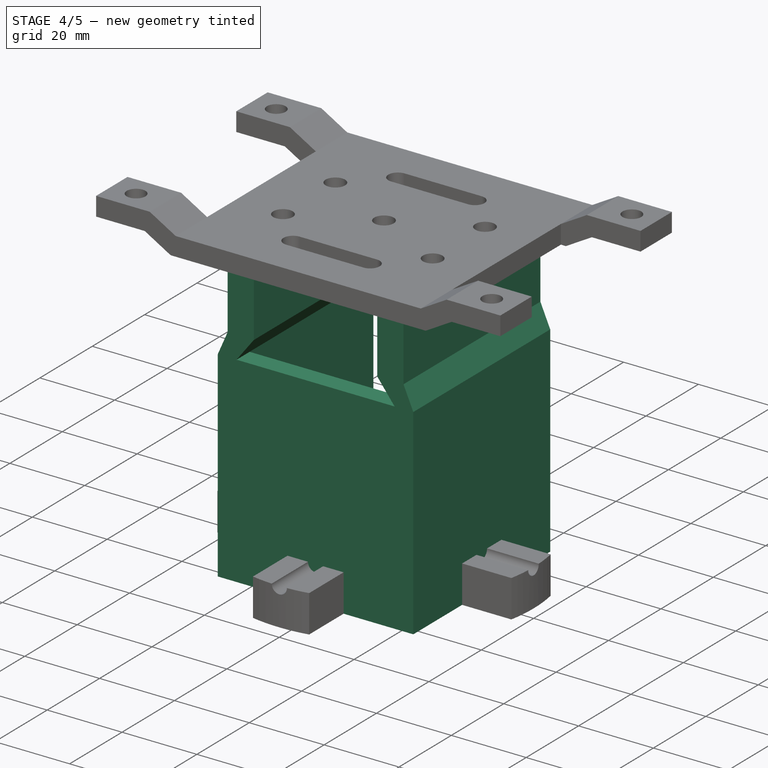
[diagram: stage 4 of 5 — iso view after this stage's code; geometry added in this stage tinted green]
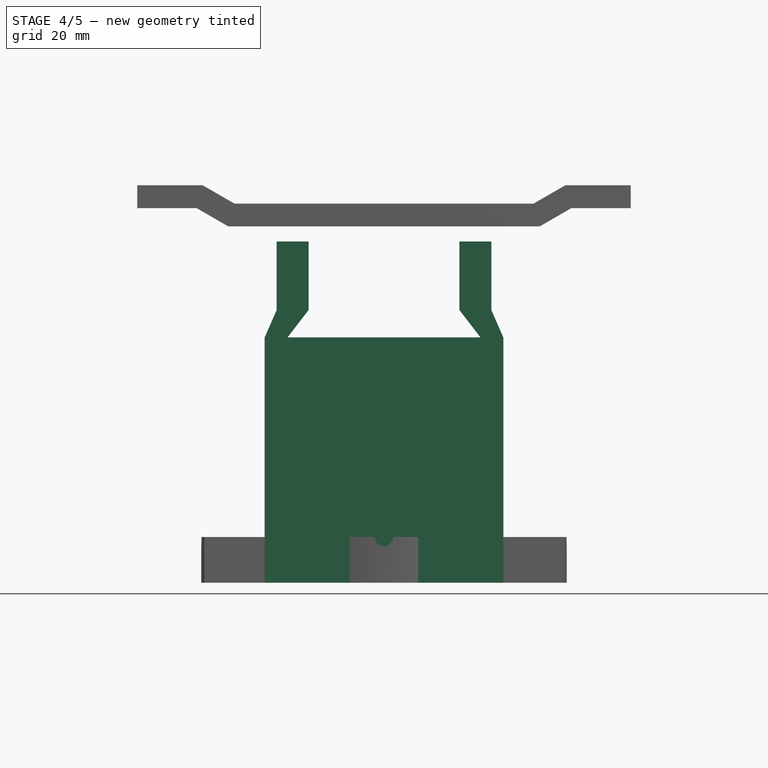
[diagram: stage 4 of 5 — front view after this stage's code; geometry added in this stage tinted green]
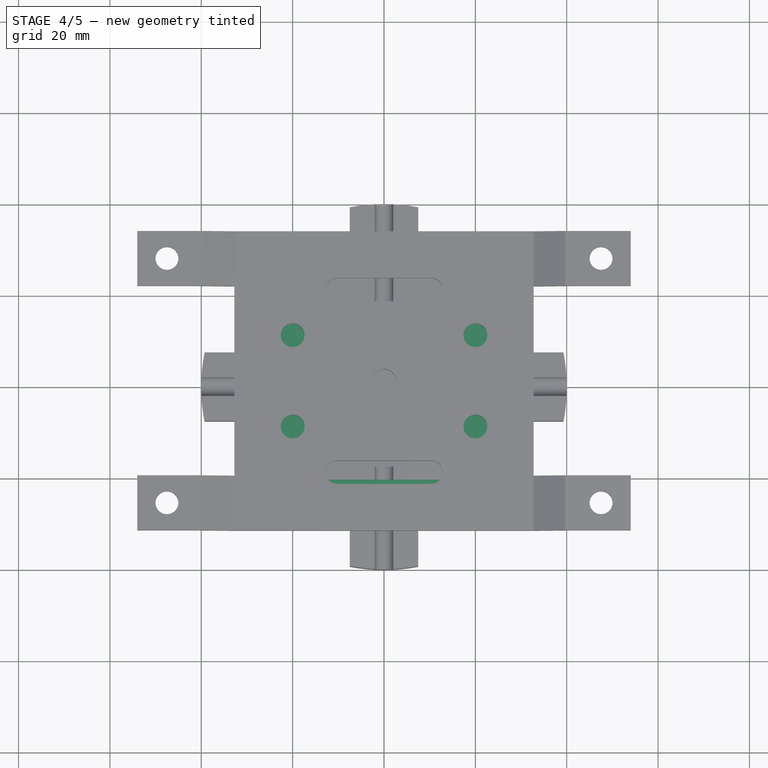
[diagram: stage 4 of 5 — top view after this stage's code; geometry added in this stage tinted green]
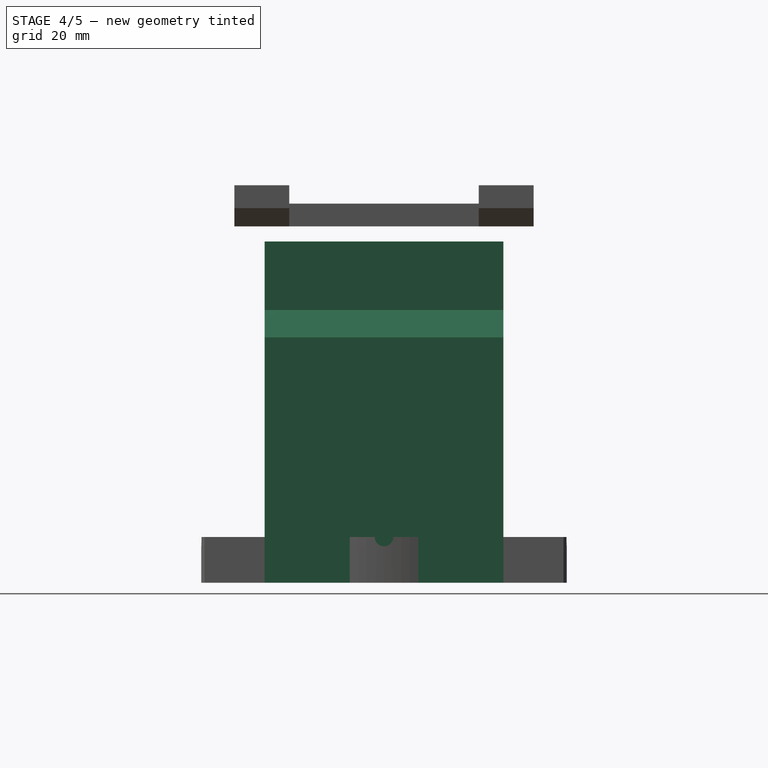
[diagram: stage 4 of 5 — right view after this stage's code; geometry added in this stage tinted green]
FEATURE [Sketcher::SketchObject] Sketch002
  ArcFitTolerance = 1e-06
  AttachmentSupport = -> [Pocket]
  ExternalGeometry = -> [Pocket]
  FullyConstrained = true
  MakeInternals = false
  MapMode = 5
  Placement = pos=(0,0,6.5) rot=(0,0,1;0rad)
  sketch-geometry (8):
    g0: LineSegment StartX=-26.125 StartY=-26.125 StartZ=0 EndX=-26.125 EndY=26.125 EndZ=0
    g1: LineSegment StartX=26.125 StartY=26.125 StartZ=0 EndX=26.125 EndY=-26.125 EndZ=0
    g2: LineSegment StartX=26.125 StartY=-26.125 StartZ=0 EndX=-26.125 EndY=-26.125 EndZ=0
    g3: LineSegment StartX=-21.125 StartY=-21.125 StartZ=0 EndX=21.125 EndY=-21.125 EndZ=0
    g4: LineSegment StartX=21.125 StartY=-21.125 StartZ=0 EndX=21.125 EndY=26.125 EndZ=0
    g5: LineSegment StartX=-21.125 StartY=26.125 StartZ=0 EndX=-21.125 EndY=-21.125 EndZ=0
    g6: LineSegment StartX=-26.125 StartY=26.125 StartZ=0 EndX=-21.125 EndY=26.125 EndZ=0
    g7: LineSegment StartX=21.125 StartY=26.125 StartZ=0 EndX=26.125 EndY=26.125 EndZ=0
  constraints (20):
    c: Coincident(g0,g-6)
    c: Coincident(g0,g2)
    c: Coincident(g2,g-4)
    c: Coincident(g5,g3)
    c: Vertical(g5)
    c: Horizontal(g3)
    c: Coincident(g0,g-3)
    c: Coincident(g1,g2)
    c: Coincident(g1,g-5)
    c: Coincident(g6,g0)
    c: Coincident(g6,g5)
    c: Coincident(g7,g4)
    c: Coincident(g7,g1)
    c: Horizontal(g7)
    c: Horizontal(g6)
    c: Vertical(g4)
    c: Coincident(g3,g4)
    c: Distance(g1,g4) = 5
    c: Equal(g6,g7)
    c: Distance(g2,g3) = 5
FEATURE [PartDesign::Pad] Pad001
  BaseFeature = -> Pocket
  Direction = (0,0,1)
  Length = 47.2
  Length2 = 10
  Profile = -> Sketch002
  ReferenceAxis = -> Sketch002 [N_Axis]
  Refine = true
  Suppressed = false
  Type = 0
FEATURE [PartDesign::Chamfer] Chamfer
  Angle = 45
  Base = -> Pad001 [Edge38,Edge44,Edge13,Edge24]
  BaseFeature = -> Pad001
  ChamferType = 0
  FlipDirection = false
  Refine = true
  Size = 1
  Size2 = 1
  SupportTransform = false
  Suppressed = false
  UseAllEdges = false
FEATURE [Sketcher::SketchObject] Sketch003
  ArcFitTolerance = 1e-06
  AttachmentSupport = -> [Chamfer]
  ExternalGeometry = -> [Chamfer]
  FullyConstrained = true
  MakeInternals = false
  MapMode = 5
  Placement = pos=(0,26.125,0) rot=(0,0.707107,0.707107;3.14159rad)
  sketch-geometry (14):
    g0: LineSegment StartX=-26.125 StartY=53.7 StartZ=0 EndX=-23.5 EndY=59.7 EndZ=0
    g1: LineSegment StartX=-23.5 StartY=59.7 StartZ=0 EndX=-23.5 EndY=74.7 EndZ=0
    g2: LineSegment StartX=-23.5 StartY=74.7 StartZ=0 EndX=-16.5 EndY=74.7 EndZ=0
    g3: LineSegment StartX=-16.5 StartY=74.7 StartZ=0 EndX=-16.5 EndY=59.7 EndZ=0
    g4: LineSegment StartX=26.125 StartY=53.7 StartZ=0 EndX=23.5 EndY=59.7 EndZ=0
    g5: LineSegment StartX=23.5 StartY=59.7 StartZ=0 EndX=23.5 EndY=74.7 EndZ=0
    g6: LineSegment StartX=23.5 StartY=74.7 StartZ=0 EndX=16.5 EndY=74.7 EndZ=0
    g7: LineSegment StartX=16.5 StartY=74.7 StartZ=0 EndX=16.5 EndY=59.7 EndZ=0
    g8: LineSegment StartX=-16.5 StartY=59.7 StartZ=0 EndX=-21.125 EndY=53.7 EndZ=0
    g9: LineSegment StartX=16.5 StartY=59.7 StartZ=0 EndX=21.125 EndY=53.7 EndZ=0
    g10: GeomPoint X=-20 Y=74.7 Z=0
    g11: GeomPoint X=20 Y=74.7 Z=0
    g12: LineSegment StartX=-26.125 StartY=53.7 StartZ=0 EndX=-21.125 EndY=53.7 EndZ=0
    g13: LineSegment StartX=21.125 StartY=53.7 StartZ=0 EndX=26.125 EndY=53.7 EndZ=0
  constraints (33):
    c: Coincident(g0,g1)
    c: Vertical(g1)
    c: Coincident(g1,g2)
    c: Coincident(g2,g3)
    c: Vertical(g3)
    c: Coincident(g3,g8)
    c: Horizontal(g2)
    c: DistanceX(g2,g2) = 7
    c: DistanceY(g3,g3) = 15
    c: Coincident(g4,g5)
    c: Vertical(g5)
    c: Coincident(g5,g6)
    c: Coincident(g6,g7)
    c: Vertical(g7)
    c: Horizontal(g6)
    c: Coincident(g9,g7)
    c: Equal(g6,g2)
    c: Equal(g3,g7)
    c: Symmetric(g2,g6,g-2)
    c: Symmetric(g2,g2,g10)
    c: Symmetric(g6,g6,g11)
    c: DistanceX(g10,g11) = 40
    c: Coincident(g9,g-4)
    c: Coincident(g8,g-3)
    c: Coincident(g12,g8)
    c: Coincident(g13,g9)
    c: Horizontal(g0,g3)
    c: Horizontal(g4,g7)
    c: Coincident(g12,g-3)
    c: Coincident(g-3,g0)
    c: Coincident(g13,g-4)
    c: Coincident(g13,g4)
    c: DistanceY(g0,g0) = 6
FEATURE [PartDesign::Pad] Pad002
  BaseFeature = -> Chamfer
  Direction = (0,1,-2e-16)
  Length = 10
  Length2 = 10
  Profile = -> Sketch003
  ReferenceAxis = -> Sketch003 [N_Axis]
  Refine = true
  Reversed = true
  Suppressed = false
  Type = 3
  UpToFace = -> Chamfer [Face6]
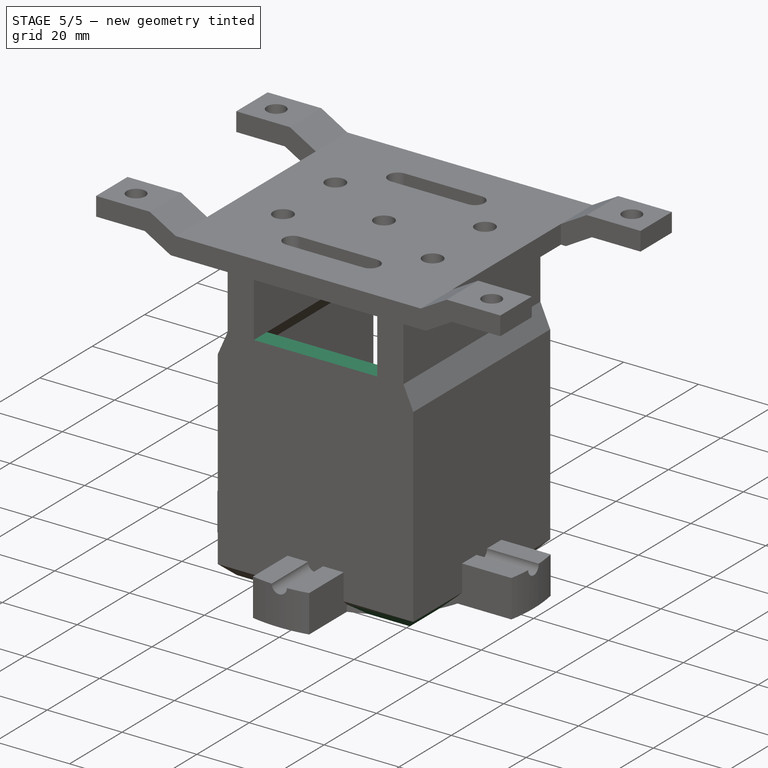
[diagram: stage 5 of 5 — iso view after this stage's code; geometry added in this stage tinted green]
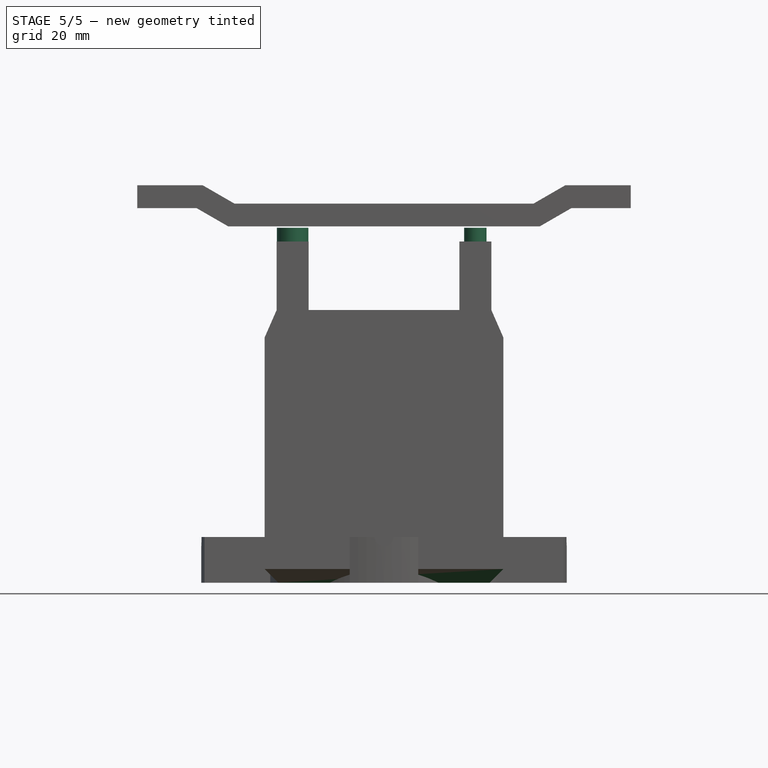
[diagram: stage 5 of 5 — front view after this stage's code; geometry added in this stage tinted green]
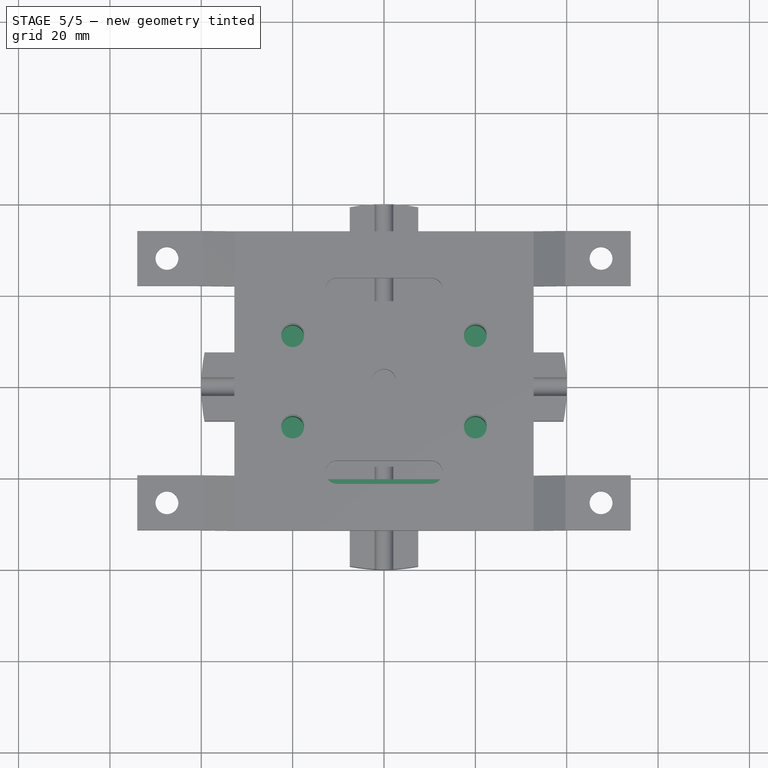
[diagram: stage 5 of 5 — top view after this stage's code; geometry added in this stage tinted green]
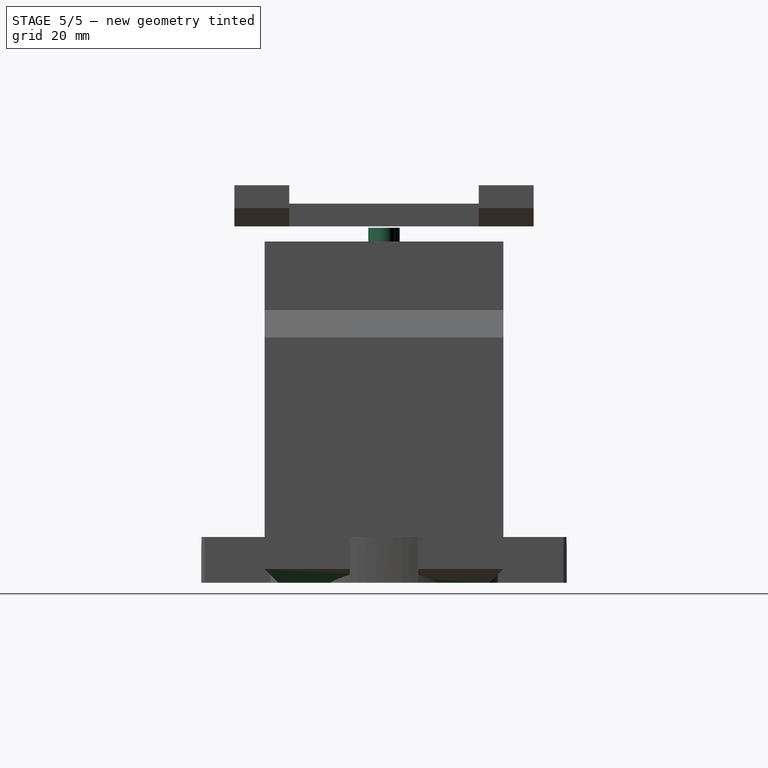
[diagram: stage 5 of 5 — right view after this stage's code; geometry added in this stage tinted green]
FEATURE [Sketcher::SketchObject] Sketch004
  ArcFitTolerance = 1e-06
  AttachmentSupport = -> [Pad002]
  FullyConstrained = true
  MakeInternals = false
  MapMode = 5
  Placement = pos=(0,1.64e-14,74.7) rot=(0,0,1;0rad)
  sketch-geometry (4):
    g0: Circle CenterX=-20 CenterY=10 CenterZ=0 NormalX=0 NormalY=0 NormalZ=1 AngleXU=0 Radius=2.475
    g1: Circle CenterX=-20 CenterY=-10 CenterZ=0 NormalX=0 NormalY=0 NormalZ=1 AngleXU=0 Radius=2.475
    g2: Circle CenterX=20 CenterY=-10 CenterZ=0 NormalX=0 NormalY=0 NormalZ=1 AngleXU=0 Radius=2.475
    g3: Circle CenterX=20 CenterY=10 CenterZ=0 NormalX=0 NormalY=0 NormalZ=1 AngleXU=0 Radius=2.475
  constraints (9):
    c: Equal(g0,g3)
    c: Equal(g3,g1)
    c: Equal(g1,g2)
    c: Symmetric(g0,g3,g-2)
    c: Symmetric(g2,g1,g-2)
    c: DistanceX(g1,g2) = 40
    c: Symmetric(g0,g1,g-1)
    c: DistanceY(g2,g3) = 20
    c: Diameter(g0) = 4.95
FEATURE [PartDesign::Pocket] Pocket001
  BaseFeature = -> Pad002
  Direction = (0,0,-1)
  Length = 15
  Length2 = 5
  Profile = -> Sketch004
  ReferenceAxis = -> Sketch004 [N_Axis]
  Refine = true
  Suppressed = false
  Type = 0
FEATURE [Sketcher::SketchObject] Sketch005
  ArcFitTolerance = 1e-06
  AttachmentSupport = -> [Pocket001]
  ExternalGeometry = -> [Pocket001]
  FullyConstrained = true
  MakeInternals = false
  MapMode = 5
  Placement = pos=(0,-26.125,0) rot=(1,0,0;1.5708rad)
  sketch-geometry (4):
    g0: LineSegment StartX=-16.5 StartY=59.7 StartZ=0 EndX=16.5 EndY=59.7 EndZ=0
    g1: LineSegment StartX=16.5 StartY=59.7 StartZ=0 EndX=21.125 EndY=53.7 EndZ=0
    g2: LineSegment StartX=21.125 StartY=53.7 StartZ=0 EndX=-21.125 EndY=53.7 EndZ=0
    g3: LineSegment StartX=-21.125 StartY=53.7 StartZ=0 EndX=-16.5 EndY=59.7 EndZ=0
  constraints (8):
    c: Coincident(g0,g-3)
    c: Coincident(g0,g-4)
    c: Coincident(g0,g1)
    c: Coincident(g1,g-5)
    c: Coincident(g1,g2)
    c: Coincident(g2,g-6)
    c: Coincident(g2,g3)
    c: Coincident(g3,g0)
FEATURE [PartDesign::Pad] Pad003
  BaseFeature = -> Pocket001
  Direction = (0,-1,2e-16)
  Length = 10
  Length2 = 10
  Profile = -> Sketch005
  ReferenceAxis = -> Sketch005 [N_Axis]
  Refine = true
  Reversed = true
  Suppressed = false
  Type = 3
  UpToFace = -> Pocket001 [Face35]
FEATURE [Part::Feature] Part__Feature  label="rear end cap"
  shape: bbox 46.44 x 42.08 x 9.4 mm, 73 faces (baked)
FEATURE [Part::Feature] Part__Feature001  label="rear bearing"
  Placement = pos=(0,0,6.6) rot=(0,0,1;0rad)
  shape: bbox 16 x 16 x 5.05 mm, 13 faces (baked)
FEATURE [Part::Feature] Part__Feature002  label="connector"
  shape: bbox 10.8 x 15.6 x 6.2 mm, 85 faces (baked)
FEATURE [Part::Feature] Part__Feature003  label="shaft"
  Placement = pos=(0,0,2.8) rot=(0,0,1;0rad)
  shape: bbox 5 x 5 x 58 mm, 7 faces (baked)
FEATURE [Part::Feature] Part__Feature004  label="stator"
  Placement = pos=(0,0,9.4) rot=(0,0,1;0rad)
  shape: bbox 42 x 42 x 20 mm, 713 faces (baked)
FEATURE [Part::Feature] Part__Feature005  label="front end cap"
  Placement = pos=(0,0,29.4) rot=(0,0,1;0rad)
  shape: bbox 42 x 42 x 10 mm, 34 faces (baked)
FEATURE [Part::Feature] Part__Feature006  label="front bearing"
  Placement = pos=(0,0,34.6) rot=(0,1,0;3.14159rad)
  shape: bbox 16 x 16 x 5.05 mm, 13 faces (baked)
FEATURE [Part::Feature] Part__Feature007  label="M3x10-Screw"
  Placement = pos=(15.5,15.5,2) rot=(0,1,0;3.14159rad)
  shape: bbox 5.7 x 5.7 x 11.65 mm, 15 faces (baked)
FEATURE [Part::Feature] Part__Feature008  label="M3x10-Screw001"
  Placement = pos=(15.5,-15.5,2) rot=(0,1,0;3.14159rad)
  shape: bbox 5.7 x 5.7 x 11.65 mm, 15 faces (baked)
FEATURE [Part::Feature] Part__Feature009  label="M3x10-Screw002"
  Placement = pos=(-15.5,15.5,2) rot=(0,1,0;3.14159rad)
  shape: bbox 5.7 x 5.7 x 11.65 mm, 15 faces (baked)
FEATURE [Part::Feature] Part__Feature010  label="M3x10-Screw003"
  Placement = pos=(-15.5,-15.5,2) rot=(0,1,0;3.14159rad)
  shape: bbox 5.7 x 5.7 x 11.65 mm, 15 faces (baked)
FEATURE [App::Part] _7HS4401S_Stepper_Motor  label="17HS4401S Stepper Motor"
  Group = -> [Part__Feature,Part__Feature001,Part__Feature002,Part__Feature003,Part__Feature004,Part__Feature005,Part__Feature006,Part__Feature007,Part__Feature008,Part__Feature009,Part__Feature010]
  Origin = -> Origin001
  Placement = pos=(0,4.5e-15,44) rot=(-0.707107,-0.707107,0;3.14159rad)
FEATURE [Sketcher::SketchObject] Sketch006
  ArcFitTolerance = 1e-06
  AttachmentSupport = -> [Pad003]
  ExternalGeometry = -> [Pad003]
  FullyConstrained = true
  MakeInternals = false
  MapMode = 5
  Placement = pos=(0,1.64e-14,74.7) rot=(0,0,1;0rad)
  sketch-geometry (2):
    g0: Circle CenterX=-20 CenterY=0 CenterZ=0 NormalX=0 NormalY=0 NormalZ=1 AngleXU=0 Radius=3.45
    g1: Circle CenterX=20 CenterY=0 CenterZ=0 NormalX=0 NormalY=0 NormalZ=1 AngleXU=0 Radius=2.45
  constraints (5):
    c: Symmetric(g1,g0,g-2)
    c: PointOnObject(g1,g-1)
    c: Vertical(g1,g-3)
    c: Diameter(g0) = 6.9
    c: Diameter(g1) = 4.9
FEATURE [PartDesign::Pad] Pad004
  BaseFeature = -> Pad003
  Direction = (0,0,1)
  Length = 3
  Length2 = 10
  Profile = -> Sketch006
  ReferenceAxis = -> Sketch006 [N_Axis]
  Refine = true
  Suppressed = false
  Type = 0
FEATURE [Part::Feature] Part__Feature011  label="V-Slot Gantry Plate 20mm v1"
  Placement = pos=(0,-8.9e-15,75) rot=(1,0,0;1.5708rad)
  shape: bbox 65.5 x 65.5 x 3 mm, 57 faces (baked)
FEATURE [PartDesign::Chamfer] Chamfer001
  Angle = 45
  Base = -> Pad004 [Edge7,Edge9,Edge1,Edge3,Edge5]
  BaseFeature = -> Pad004
  ChamferType = 0
  FlipDirection = false
  Refine = true
  Size = 3
  Size2 = 1
  SupportTransform = false
  Suppressed = false
  UseAllEdges = false
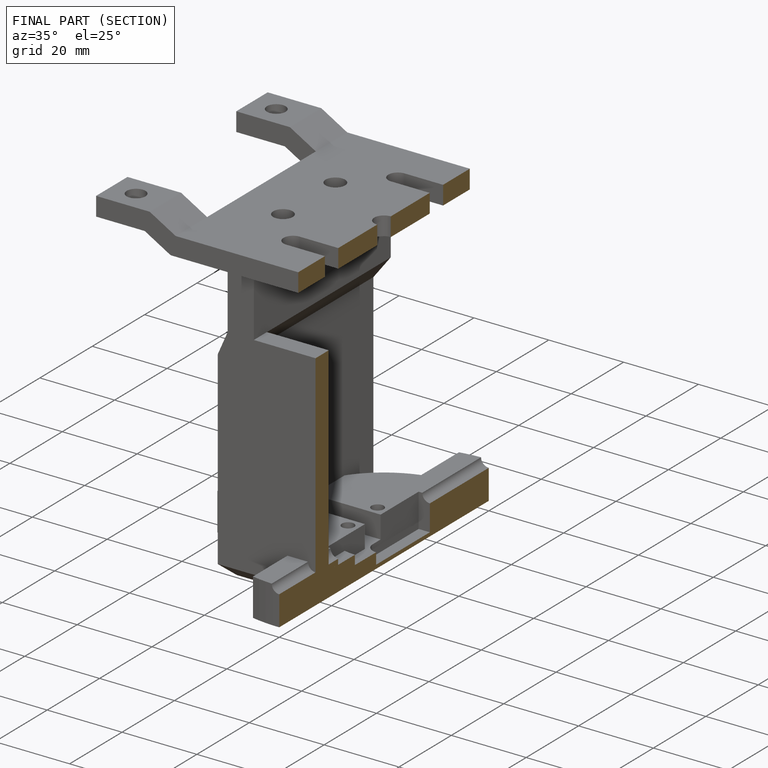
[diagram: finished part — half-section view (interior)]
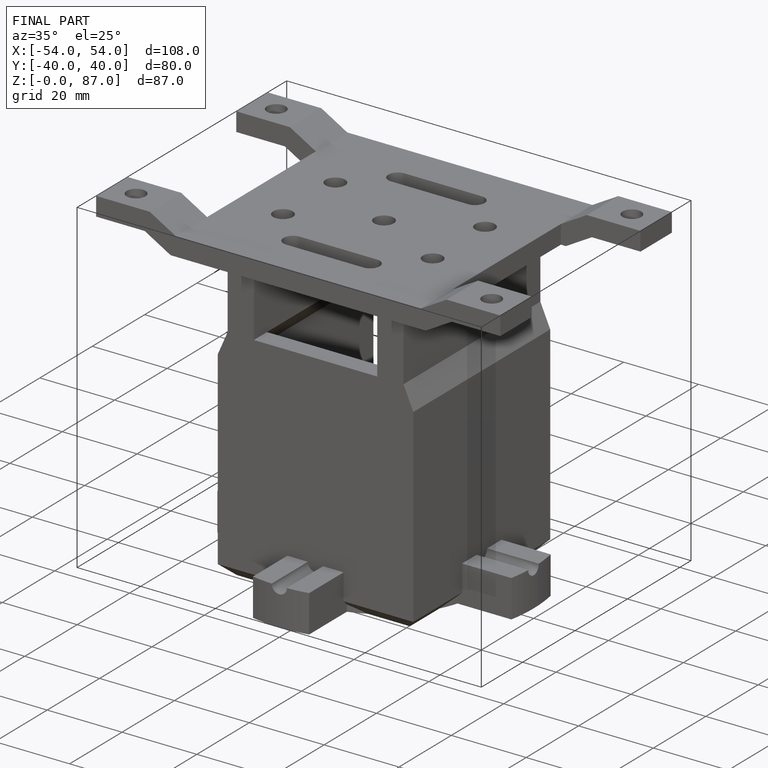
[diagram: finished part — iso view with bounding-box wireframe]
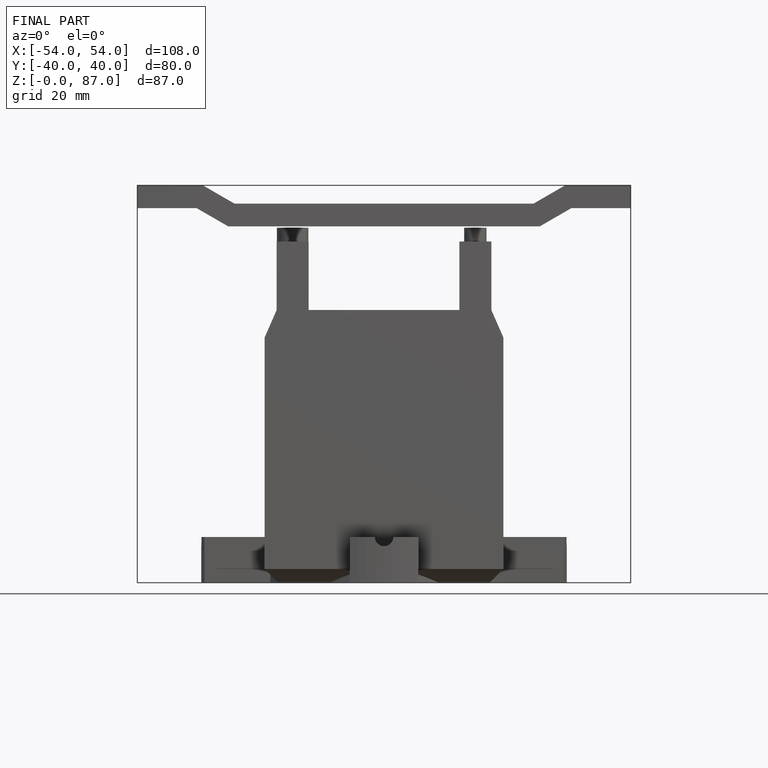
[diagram: finished part — front view with bounding-box wireframe]
